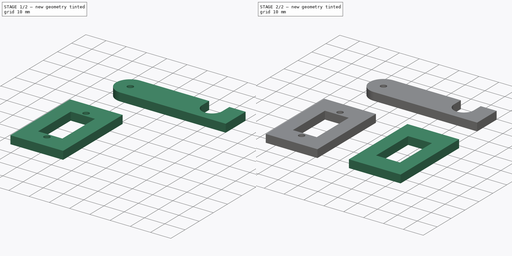
[diagram: build sequence overview — one tinted view per stage of 2, left to right]
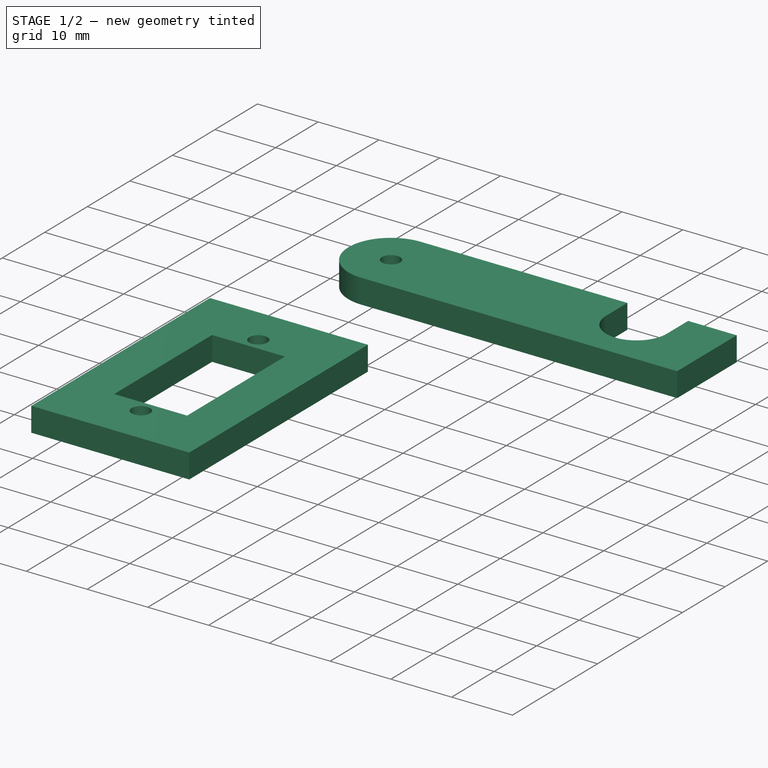
[diagram: stage 1 of 2 — iso view after this stage's code; geometry added in this stage tinted green]
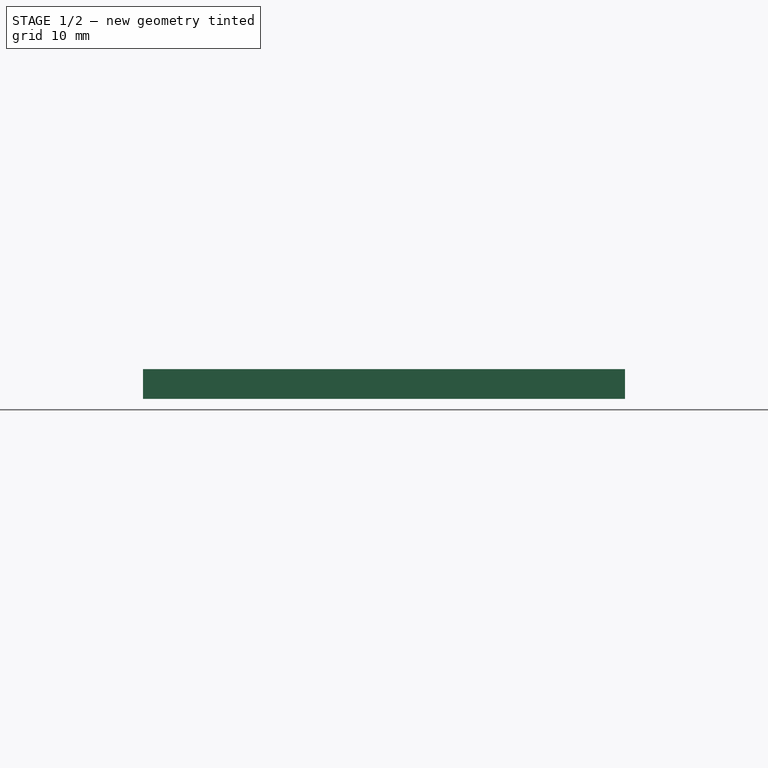
[diagram: stage 1 of 2 — front view after this stage's code; geometry added in this stage tinted green]
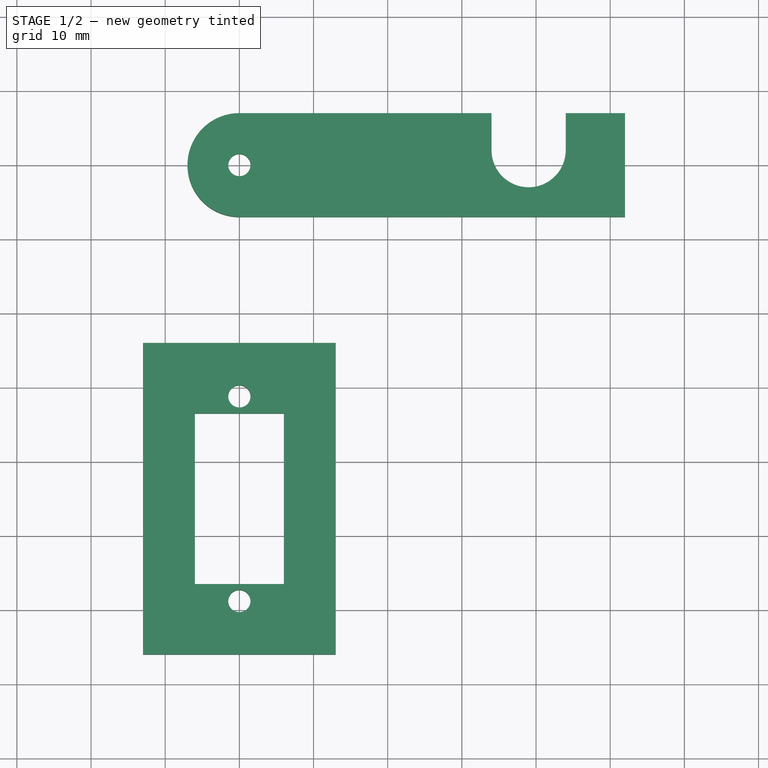
[diagram: stage 1 of 2 — top view after this stage's code; geometry added in this stage tinted green]
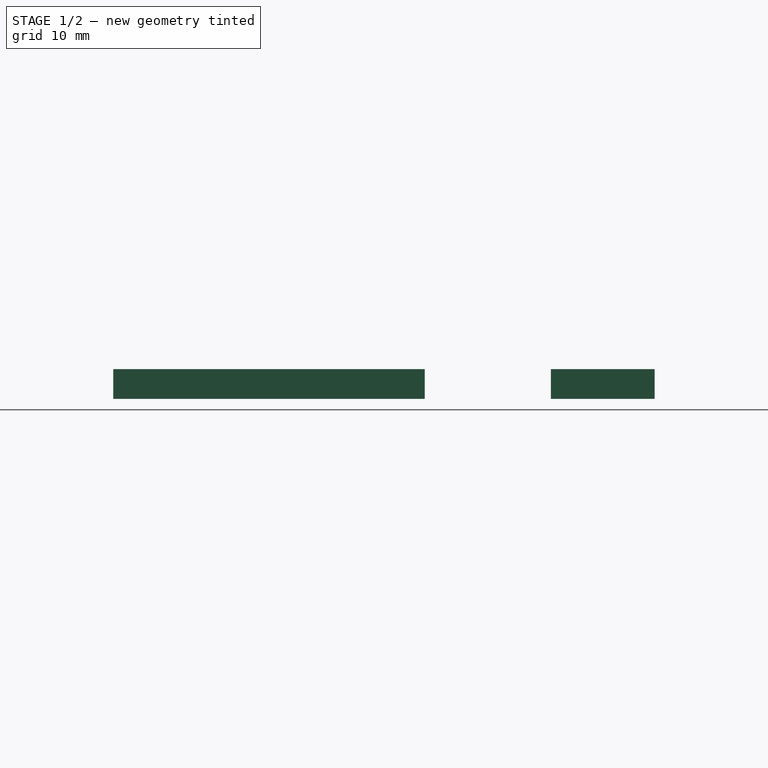
[diagram: stage 1 of 2 — right view after this stage's code; geometry added in this stage tinted green]
FCSTD DOCUMENT  (FreeCAD 0.16R6706 (Git))
Label: coxa
License: All rights reserved
LicenseURL: http://en.wikipedia.org/wiki/All_rights_reserved
objects: Sketcher::SketchObject×3, PartDesign::Pad×3
note: 9 computed .brp shape members not serialized (recipe doc carries the construction recipe); baked Part::Feature solids carry a one-line shape summary decoded from their .brp

FEATURE [PartDesign::Pad] Pad003  label="joint_up001"
  Length = 4
  Length2 = 100
  Sketch = -> Sketch003
  Type = 0
FEATURE [PartDesign::Pad] Pad  label="coxa"
  Length = 4
  Length2 = 100
  Sketch = -> Sketch
  Type = 0
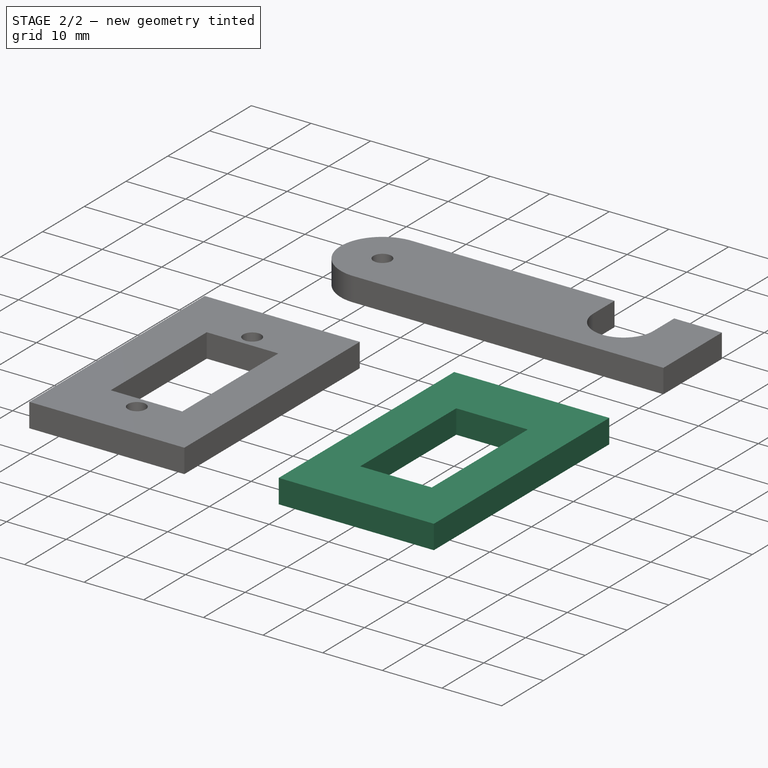
[diagram: stage 2 of 2 — iso view after this stage's code; geometry added in this stage tinted green]
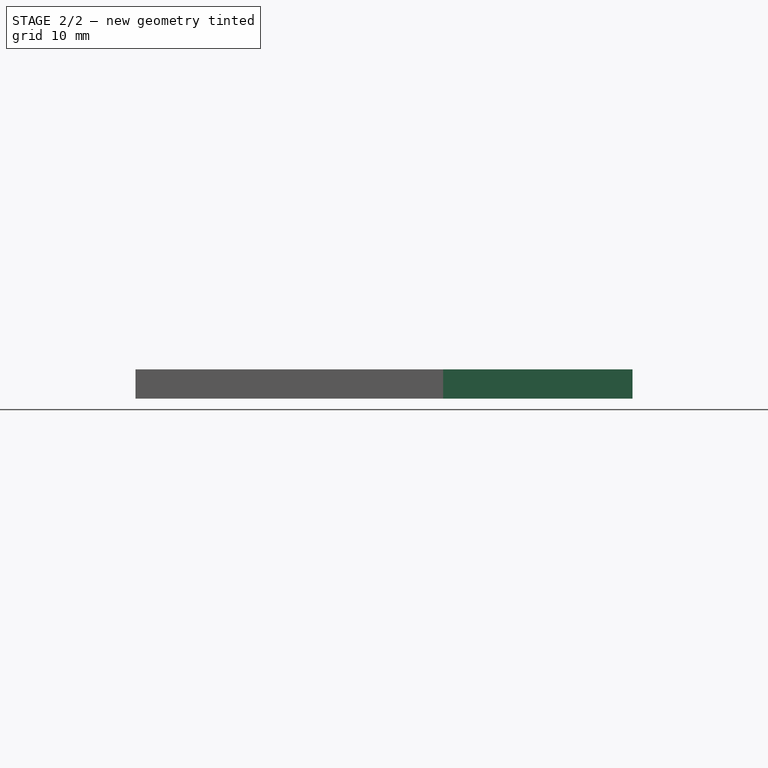
[diagram: stage 2 of 2 — front view after this stage's code; geometry added in this stage tinted green]
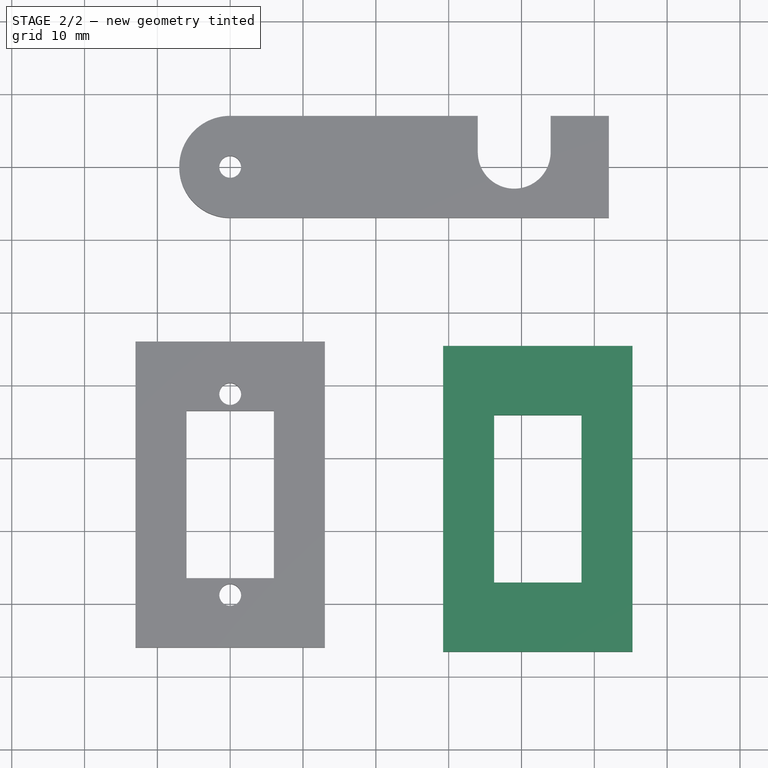
[diagram: stage 2 of 2 — top view after this stage's code; geometry added in this stage tinted green]
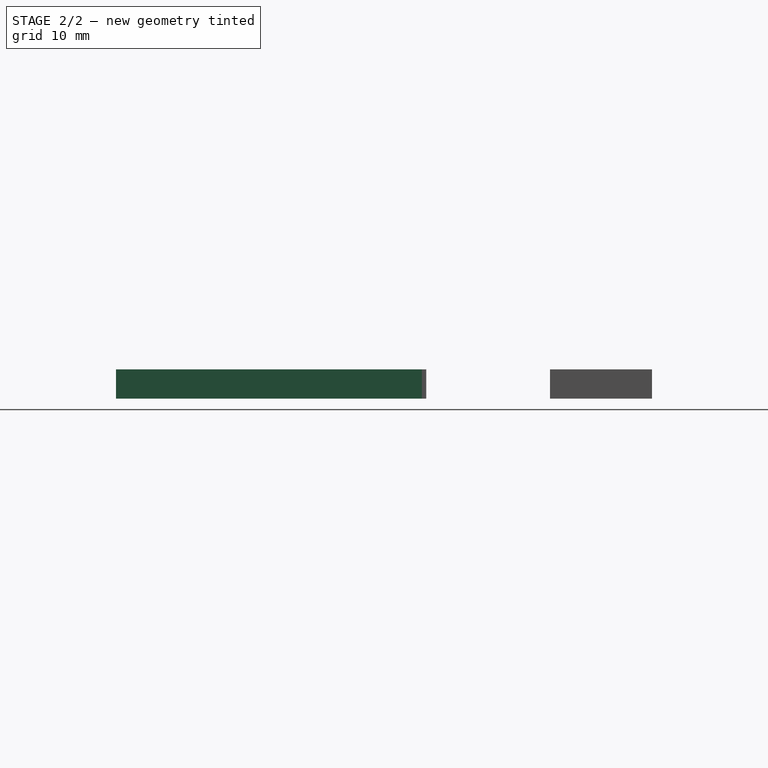
[diagram: stage 2 of 2 — right view after this stage's code; geometry added in this stage tinted green]
FEATURE [Sketcher::SketchObject] Sketch  label="coax"
  sketch-geometry (10):
    g0: ArcOfCircle CenterX=0 CenterY=0 CenterZ=0 NormalX=0 NormalY=0 NormalZ=1 Radius=7 StartAngle=1.5708 EndAngle=4.71239
    g1: LineSegment StartX=-1.69308e-07 StartY=7 StartZ=0 EndX=34 EndY=7 EndZ=0
    g2: LineSegment StartX=1.96943e-07 StartY=-7 StartZ=0 EndX=52 EndY=-7 EndZ=0
    g3: LineSegment StartX=52 StartY=-7 StartZ=0 EndX=52 EndY=6.99998 EndZ=0
    g4: LineSegment StartX=52 StartY=6.99998 StartZ=0 EndX=44 EndY=6.99998 EndZ=0
    g5: LineSegment StartX=44 StartY=6.99998 StartZ=0 EndX=44 EndY=1.99998 EndZ=0
    g6: LineSegment StartX=34 StartY=2 StartZ=0 EndX=34 EndY=7 EndZ=0
    g7: Circle CenterX=0 CenterY=0 CenterZ=0 NormalX=0 NormalY=0 NormalZ=1 Radius=1.5
    g8: GeomPoint [constr] X=26 Y=7 Z=0
    g9: ArcOfCircle CenterX=39 CenterY=1.99998 CenterZ=0 NormalX=0 NormalY=0 NormalZ=1 Radius=5 StartAngle=3.14159 EndAngle=6.28319
  constraints (29):
    c: Coincident(g0,g-1)
    c: Horizontal(g1)
    c: Horizontal(g2)
    c: Coincident(g0,g1)
    c: Coincident(g0,g2)
    c: Tangent(g2,g0)
    c: Tangent(g1,g0)
    c: Coincident(g3,g2)
    c: Vertical(g3)
    c: Coincident(g4,g3)
    c: Horizontal(g4)
    c: Coincident(g5,g4)
    c: Coincident(g6,g1)
    c: Vertical(g6)
    c: Equal(g5,g6)
    c: Coincident(g7,g-1)
    c: Radius(g7) = 1.5
    c: Vertical(g5)
    c: Radius(g0) = 7
    c: Distance(g1,g5) = 10
    c: DistanceX(g4,g4) = 8
    c: PointOnObject(g8,g1)
    c: Distance(g8,g6) = 8
    c: Distance(g8,g0) = 26
    c: Coincident(g9,g5)
    c: Coincident(g6,g9)
    c: Tangent(g9,g5)
    c: Tangent(g9,g6)
    c: Distance(g6,g1) = 5
FEATURE [Sketcher::SketchObject] Sketch001  label="joint_down"
  sketch-geometry (8):
    g0: LineSegment StartX=36.239 StartY=-34.0894 StartZ=0 EndX=48.239 EndY=-34.0894 EndZ=0
    g1: LineSegment StartX=48.239 StartY=-34.0894 StartZ=0 EndX=48.239 EndY=-57.0894 EndZ=0
    g2: LineSegment StartX=48.239 StartY=-57.0894 StartZ=0 EndX=36.239 EndY=-57.0894 EndZ=0
    g3: LineSegment StartX=36.239 StartY=-57.0894 StartZ=0 EndX=36.239 EndY=-34.0894 EndZ=0
    g4: LineSegment StartX=29.239 StartY=-24.5894 StartZ=0 EndX=55.239 EndY=-24.5894 EndZ=0
    g5: LineSegment StartX=55.239 StartY=-24.5894 StartZ=0 EndX=55.239 EndY=-66.5894 EndZ=0
    g6: LineSegment StartX=55.239 StartY=-66.5894 StartZ=0 EndX=29.239 EndY=-66.5894 EndZ=0
    g7: LineSegment StartX=29.239 StartY=-66.5894 StartZ=0 EndX=29.239 EndY=-24.5894 EndZ=0
  constraints (22):
    c: Coincident(g0,g1)
    c: Coincident(g1,g2)
    c: Coincident(g2,g3)
    c: Coincident(g3,g0)
    c: Horizontal(g0)
    c: Horizontal(g2)
    c: Vertical(g1)
    c: Vertical(g3)
    c: Coincident(g4,g5)
    c: Coincident(g5,g6)
    c: Coincident(g6,g7)
    c: Coincident(g7,g4)
    c: Horizontal(g4)
    c: Horizontal(g6)
    c: Vertical(g5)
    c: Vertical(g7)
    c: Distance(g0,g4) = 9.5
    c: Distance(g0,g7) = 7
    c: Distance(g1,g6) = 9.5
    c: Distance(g1,g5) = 7
    c: Distance(g0,g3) = 12
    c: Distance(g1,g0) = 23
FEATURE [Sketcher::SketchObject] Sketch003  label="joint_up"
  sketch-geometry (11):
    g0: LineSegment StartX=6 StartY=-33.4944 StartZ=0 EndX=-6 EndY=-33.4944 EndZ=0
    g1: LineSegment StartX=-6 StartY=-33.4944 StartZ=0 EndX=-6 EndY=-56.4944 EndZ=0
    g2: LineSegment StartX=-6 StartY=-56.4944 StartZ=0 EndX=6 EndY=-56.4944 EndZ=0
    g3: LineSegment StartX=6 StartY=-56.4944 StartZ=0 EndX=6 EndY=-33.4944 EndZ=0
    g4: LineSegment StartX=13 StartY=-65.9944 StartZ=0 EndX=-13 EndY=-65.9944 EndZ=0
    g5: LineSegment StartX=-13 StartY=-65.9944 StartZ=0 EndX=-13 EndY=-23.9944 EndZ=0
    g6: LineSegment StartX=-13 StartY=-23.9944 StartZ=0 EndX=13 EndY=-23.9944 EndZ=0
    g7: LineSegment StartX=13 StartY=-23.9944 StartZ=0 EndX=13 EndY=-65.9944 EndZ=0
    g8: Circle CenterX=0 CenterY=-31.1944 CenterZ=0 NormalX=0 NormalY=0 NormalZ=1 Radius=1.5
    g9: GeomPoint [constr] X=0 Y=-33.4944 Z=0
    g10: Circle CenterX=0 CenterY=-58.7944 CenterZ=0 NormalX=0 NormalY=0 NormalZ=1 Radius=1.5
  constraints (31):
    c: Coincident(g0,g1)
    c: Coincident(g1,g2)
    c: Coincident(g2,g3)
    c: Coincident(g3,g0)
    c: Horizontal(g0)
    c: Horizontal(g2)
    c: Vertical(g1)
    c: Vertical(g3)
    c: Distance(g0,g3) = 12
    c: Distance(g0,g2) = 23
    c: Coincident(g4,g5)
    c: Coincident(g5,g6)
    c: Coincident(g6,g7)
    c: Coincident(g7,g4)
    c: Horizontal(g4)
    c: Horizontal(g6)
    c: Vertical(g5)
    c: Vertical(g7)
    c: Distance(g2,g4) = 9.5
    c: Distance(g2,g7) = 7
    c: Distance(g1,g5) = 7
    c: Distance(g0,g6) = 9.5
    c: PointOnObject(g8,g-2)
    c: Radius(g8) = 1.5
    c: Distance(g8,g0) = 2.3
    c: PointOnObject(g9,g-2)
    c: PointOnObject(g9,g0)
    c: Symmetric(g0,g0,g9)
    c: PointOnObject(g10,g-2)
    c: Radius(g10) = 1.5
    c: Distance(g10,g2) = 2.3
FEATURE [PartDesign::Pad] Pad001  label="joint_down001"
  Length = 4
  Length2 = 100
  Sketch = -> Sketch001
  Type = 0
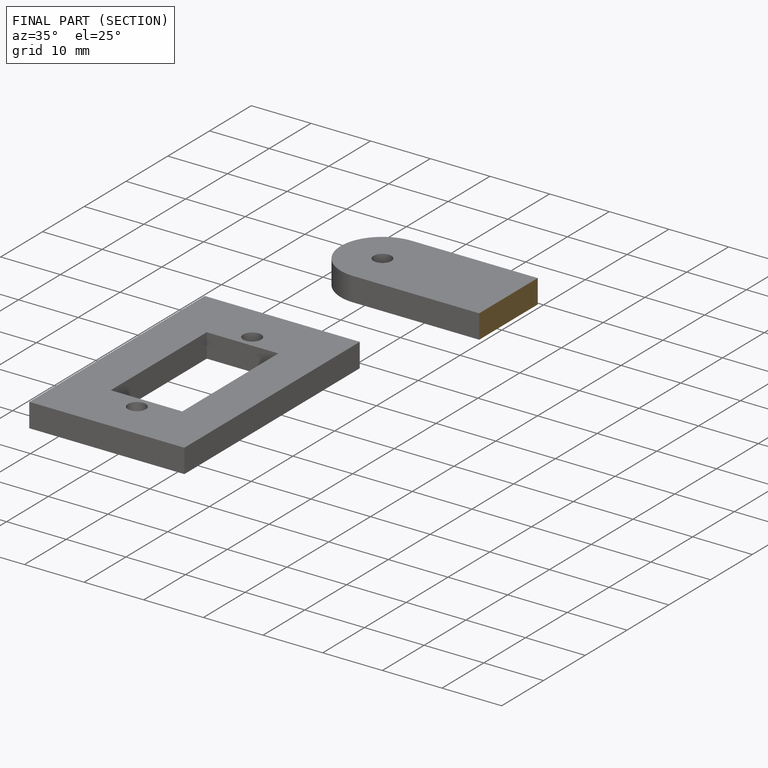
[diagram: finished part — half-section view (interior)]
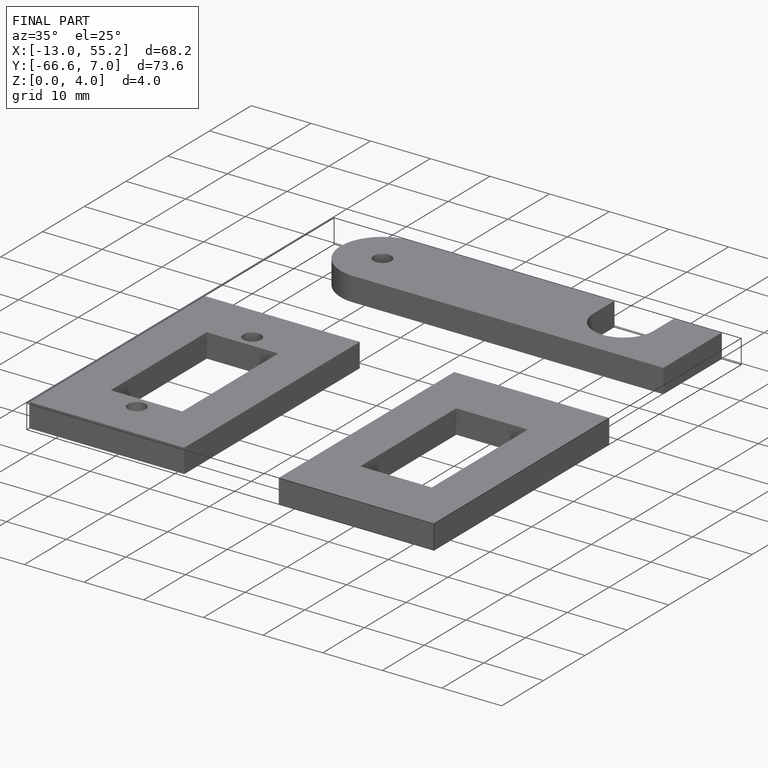
[diagram: finished part — iso view with bounding-box wireframe]
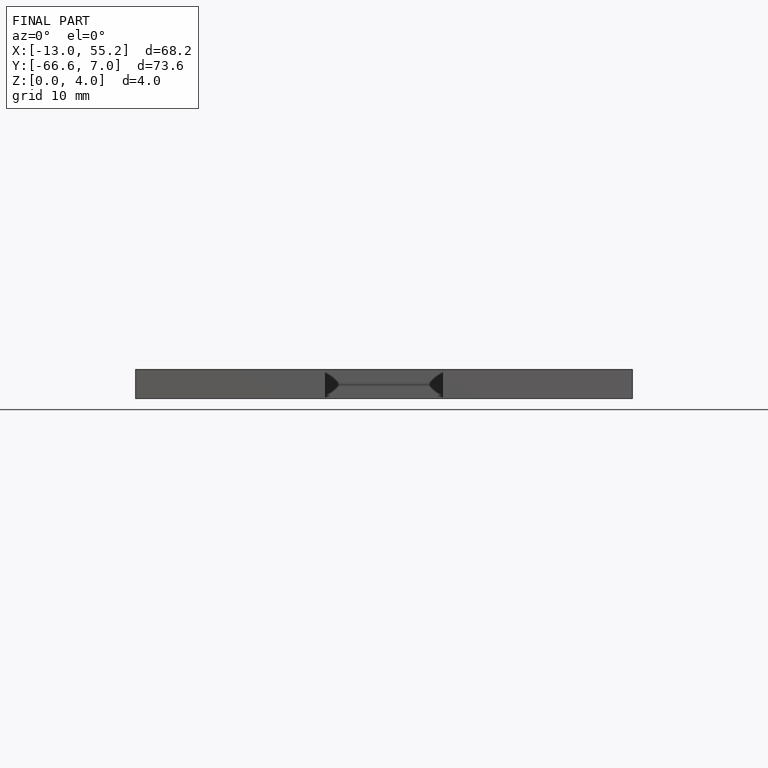
[diagram: finished part — front view with bounding-box wireframe]
